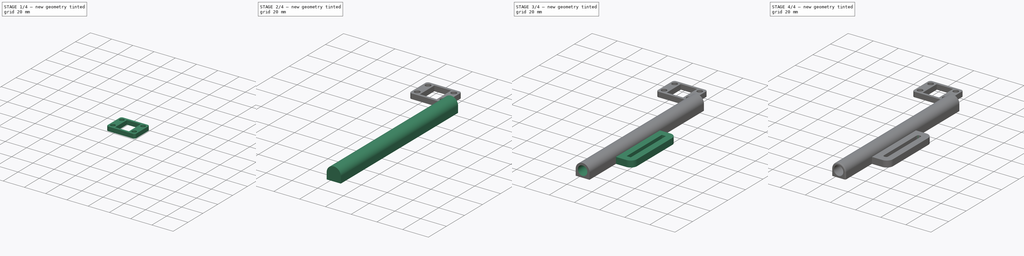
[diagram: build sequence overview — one tinted view per stage of 4, left to right]
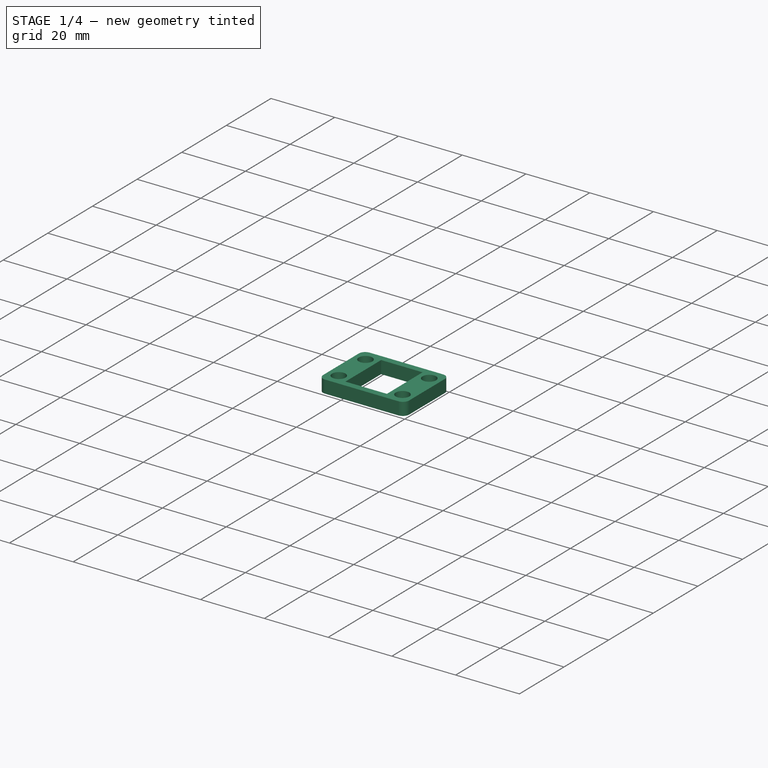
[diagram: stage 1 of 4 — iso view after this stage's code; geometry added in this stage tinted green]
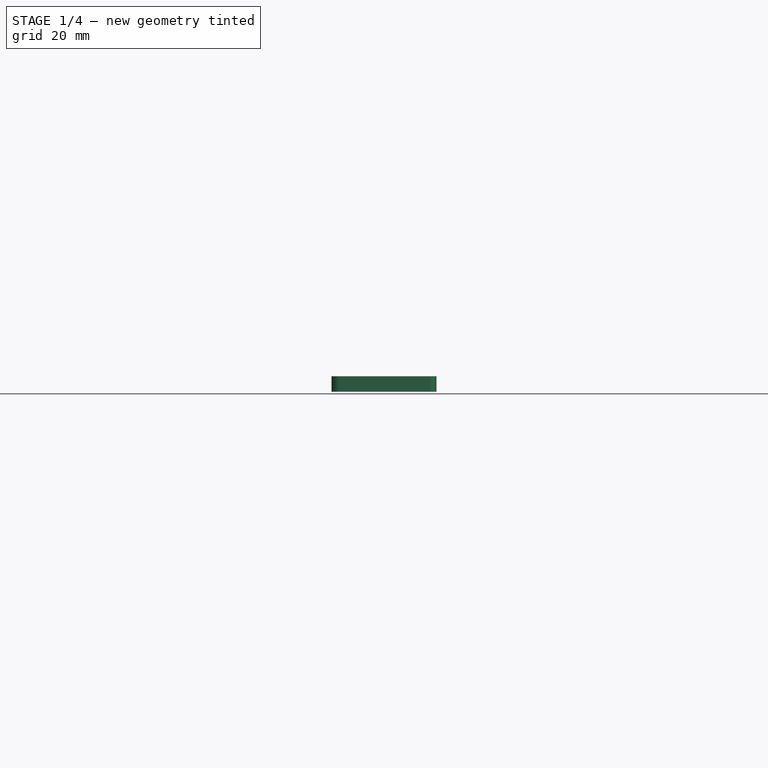
[diagram: stage 1 of 4 — front view after this stage's code; geometry added in this stage tinted green]
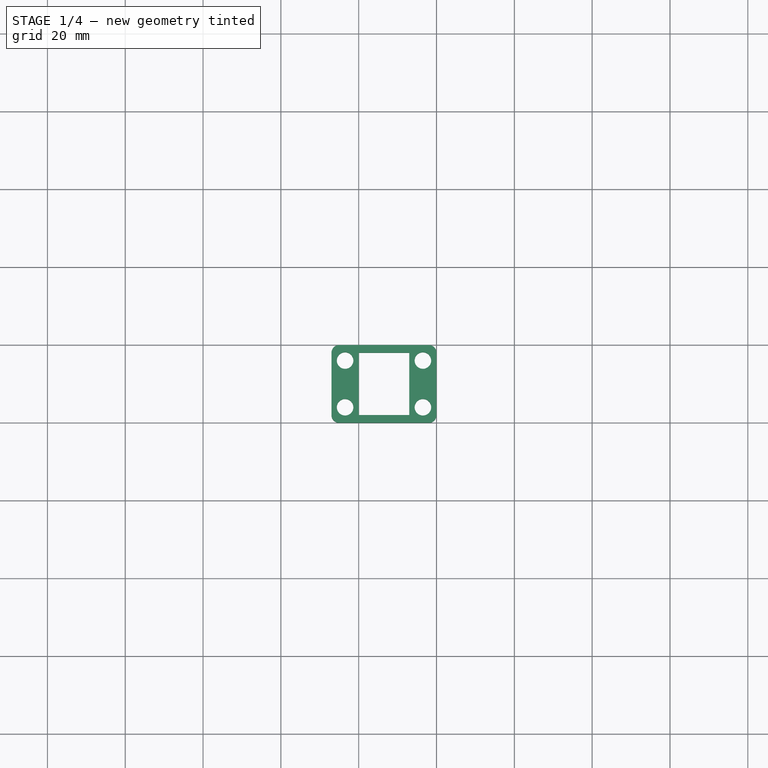
[diagram: stage 1 of 4 — top view after this stage's code; geometry added in this stage tinted green]
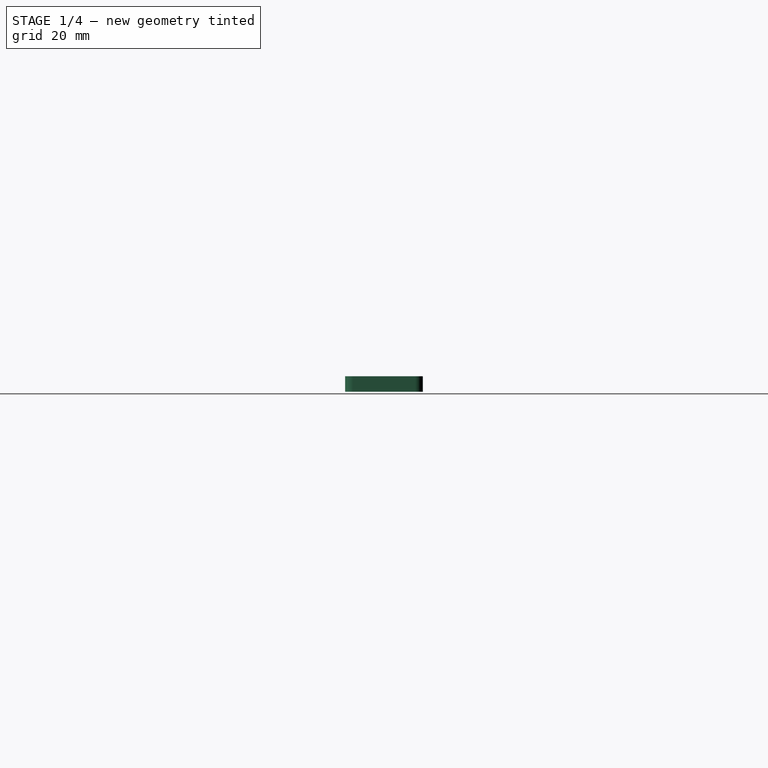
[diagram: stage 1 of 4 — right view after this stage's code; geometry added in this stage tinted green]
FCSTD DOCUMENT  (FreeCAD 2024.2R37226 (Git))
Label: pen-holder
License: All rights reserved
LicenseURL: https://en.wikipedia.org/wiki/All_rights_reserved
objects: Sketcher::SketchObject×6, PartDesign::Fillet×4, PartDesign::Pad×3, PartDesign::Pocket×3, PartDesign::Body×2
note: 28 computed .brp shape members not serialized (recipe doc carries the construction recipe); baked Part::Feature solids carry a one-line shape summary decoded from their .brp

FEATURE [PartDesign::Body] Body  label="PenHolder"
  Group = -> [Sketch,Pad,Sketch001,Pocket,Sketch002,Pocket001,Sketch003,Pocket002,Sketch004,Pad001,Fillet,Fillet001,Fillet002]
  Origin = -> Origin
  Tip = -> Fillet002
FEATURE [Sketcher::SketchObject] Sketch005
  AttachmentSupport = -> [XY_Plane001]
  FullyConstrained = true
  MapMode = 5
  sketch-geometry (14):
    g0: LineSegment StartX=0 StartY=0 StartZ=0 EndX=0 EndY=20 EndZ=0
    g1: LineSegment StartX=0 StartY=20 StartZ=0 EndX=-27 EndY=20 EndZ=0
    g2: LineSegment StartX=-27 StartY=20 StartZ=0 EndX=-27 EndY=0 EndZ=0
    g3: LineSegment StartX=-27 StartY=0 StartZ=0 EndX=0 EndY=0 EndZ=0
    g4: LineSegment StartX=-20 StartY=18 StartZ=0 EndX=-20 EndY=2 EndZ=0
    g5: LineSegment StartX=-20 StartY=2 StartZ=0 EndX=-7 EndY=2 EndZ=0
    g6: LineSegment StartX=-7 StartY=2 StartZ=0 EndX=-7 EndY=18 EndZ=0
    g7: LineSegment StartX=-7 StartY=18 StartZ=0 EndX=-20 EndY=18 EndZ=0
    g8: LineSegment StartX=-23.5 StartY=20 StartZ=0 EndX=-23.5 EndY=0 EndZ=0
    g9: LineSegment StartX=-3.5 StartY=20 StartZ=0 EndX=-3.5 EndY=0 EndZ=0
    g10: Circle CenterX=-23.5 CenterY=16 CenterZ=0 NormalX=0 NormalY=0 NormalZ=1 AngleXU=0 Radius=2.125
    g11: Circle CenterX=-23.5 CenterY=4 CenterZ=0 NormalX=0 NormalY=0 NormalZ=1 AngleXU=0 Radius=2.125
    g12: Circle CenterX=-3.5 CenterY=4 CenterZ=0 NormalX=0 NormalY=0 NormalZ=1 AngleXU=0 Radius=2.125
    g13: Circle CenterX=-3.5 CenterY=16 CenterZ=0 NormalX=0 NormalY=0 NormalZ=1 AngleXU=0 Radius=2.125
  constraints (43):
    c: Coincident(g0,g1)
    c: Coincident(g1,g2)
    c: Coincident(g2,g3)
    c: Coincident(g3,g0)
    c: Vertical(g0)
    c: Vertical(g2)
    c: Horizontal(g1)
    c: Horizontal(g3)
    c: Coincident(g0,g-1)
    c: Coincident(g4,g5)
    c: Coincident(g5,g6)
    c: Coincident(g6,g7)
    c: Coincident(g7,g4)
    c: Vertical(g4)
    c: Vertical(g6)
    c: Horizontal(g5)
    c: Horizontal(g7)
    c: PointOnObject(g8,g1)
    c: PointOnObject(g8,g3)
    c: Vertical(g8)
    c: PointOnObject(g9,g1)
    c: PointOnObject(g9,g3)
    c: Vertical(g9)
    c: Distance(g8,g9) = 20
    c: Distance(g2,g4) = 7
    c: Distance(g0,g6) = 7
    c: Distance(g1,g7) = 2
    c: Distance(g3,g5) = 2
    c: Distance(g0,g9) = 3.5
    c: Distance(g2,g8) = 3.5
    c: PointOnObject(g10,g8)
    c: PointOnObject(g11,g8)
    c: PointOnObject(g13,g9)
    c: Equal(g13,g11)
    c: Equal(g11,g12)
    c: Equal(g12,g10)
    c: Diameter(g10) = 4.25
    c: DistanceY(g11,g10) = 12
    c: DistanceY(g12,g13) = 12
    c: Distance(g11,g3) = 4
    c: Distance(g12,g3) = 4
    c: Distance(g13,g1) = 4
    c: PointOnObject(g12,g9)
FEATURE [PartDesign::Pad] Pad002
  Direction = (0,0,1)
  Length = 4
  Length2 = 10
  Profile = -> Sketch005
  ReferenceAxis = -> Sketch005 [N_Axis]
  Refine = true
  Suppressed = false
  Type = 0
FEATURE [PartDesign::Fillet] Fillet003
  Base = -> Pad002 [Edge5,Edge8,Edge1,Edge2]
  BaseFeature = -> Pad002
  Radius = 2
  Refine = true
  SupportTransform = false
  Suppressed = false
  UseAllEdges = false
FEATURE [PartDesign::Body] Body001  label="NutsHolder"
  Group = -> [Sketch005,Pad002,Fillet003]
  Origin = -> Origin001
  Tip = -> Fillet003
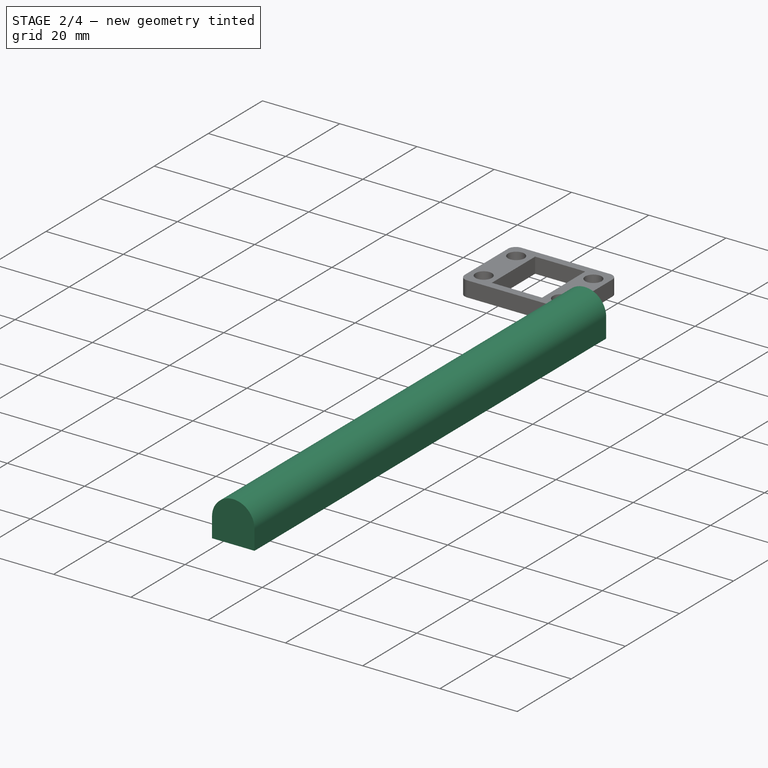
[diagram: stage 2 of 4 — iso view after this stage's code; geometry added in this stage tinted green]
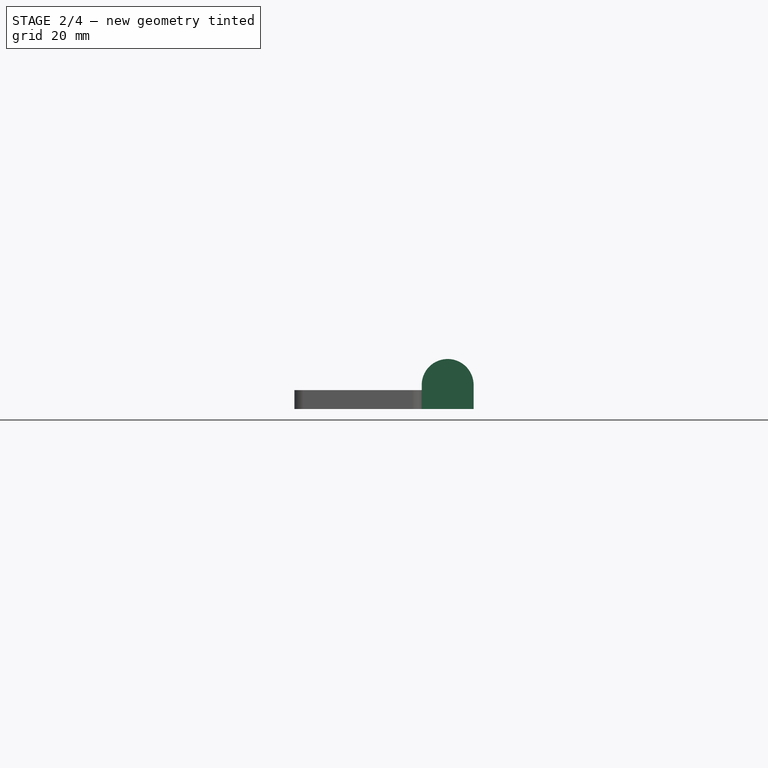
[diagram: stage 2 of 4 — front view after this stage's code; geometry added in this stage tinted green]
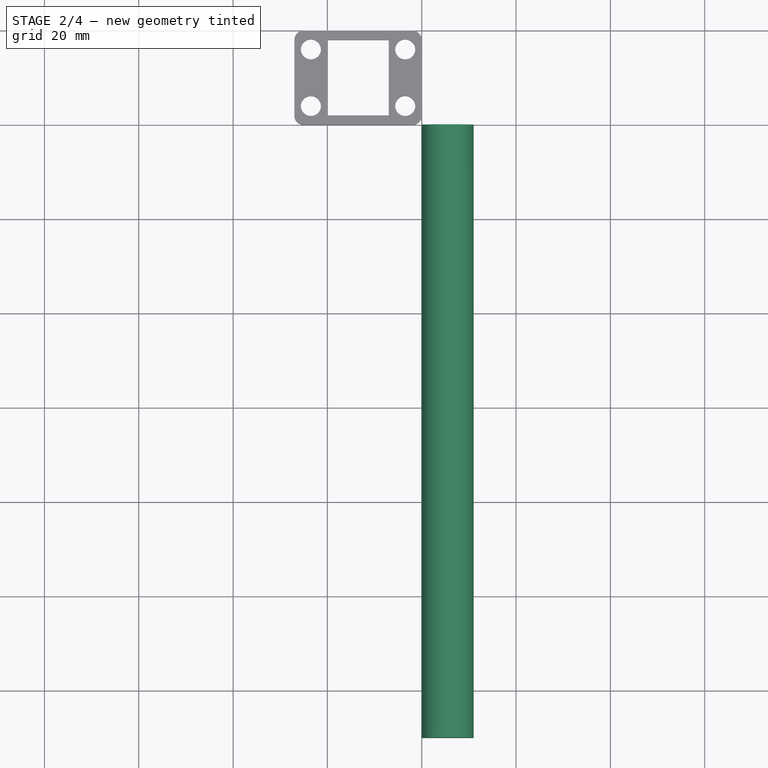
[diagram: stage 2 of 4 — top view after this stage's code; geometry added in this stage tinted green]
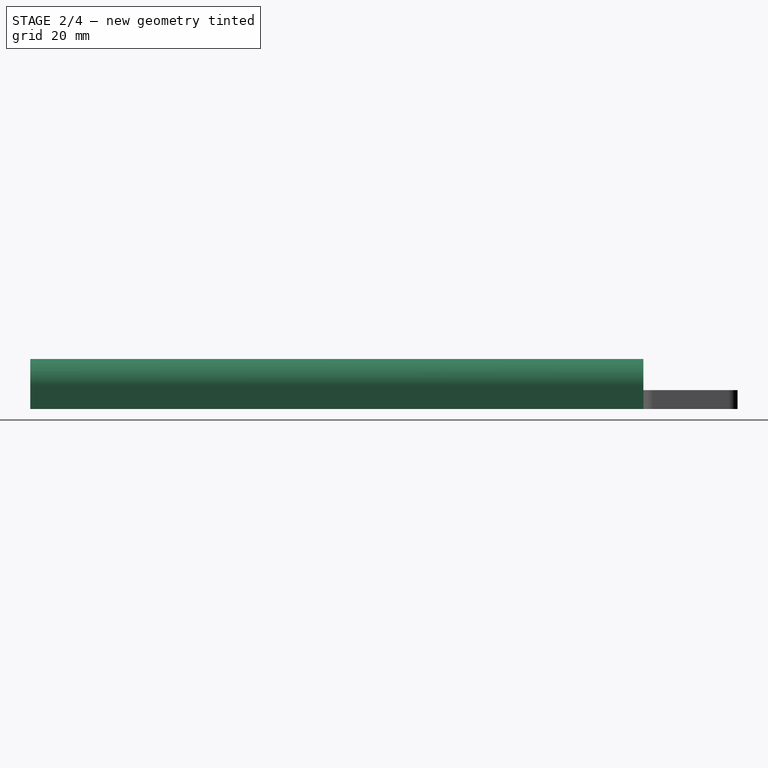
[diagram: stage 2 of 4 — right view after this stage's code; geometry added in this stage tinted green]
FEATURE [Sketcher::SketchObject] Sketch
  AttachmentSupport = -> [XZ_Plane]
  FullyConstrained = true
  MapMode = 5
  Placement = pos=(0,0,0) rot=(1,0,0;1.5708rad)
  sketch-geometry (5):
    g0: Circle CenterX=5.5 CenterY=5.1 CenterZ=0 NormalX=0 NormalY=0 NormalZ=1 AngleXU=0 Radius=3.5
    g1: ArcOfCircle CenterX=5.5 CenterY=5.1 CenterZ=0 NormalX=0 NormalY=0 NormalZ=1 AngleXU=0 Radius=5.5 StartAngle=-6.99e-13 EndAngle=3.14159
    g2: LineSegment StartX=1.05924e-11 StartY=0 StartZ=0 EndX=1.05924e-11 EndY=5.1 EndZ=0
    g3: LineSegment StartX=1.05924e-11 StartY=0 StartZ=0 EndX=11 EndY=0 EndZ=0
    g4: LineSegment StartX=11 StartY=5.1 StartZ=0 EndX=11 EndY=0 EndZ=0
  constraints (12):
    c: Diameter(g0) = 7
    c: Coincident(g1,g0)
    c: Distance(g0,g1) = 2
    c: Coincident(g2,g-1)
    c: Vertical(g2)
    c: Coincident(g3,g2)
    c: PointOnObject(g3,g-1)
    c: Coincident(g4,g3)
    c: Vertical(g4)
    c: Tangent(g1,g2) = 1.5708
    c: Tangent(g1,g4) = 1.5708
    c: Distance(g0,g3) = 1.6
FEATURE [PartDesign::Pad] Pad
  Direction = (0,-1,2e-16)
  Length = 130
  Length2 = 10
  Placement = pos=(0,0,0) rot=(1,0,0;1.5708rad)
  Profile = -> Sketch
  ReferenceAxis = -> Sketch [N_Axis]
  Refine = true
  Suppressed = false
  Type = 0
FEATURE [Sketcher::SketchObject] Sketch001
  AttachmentSupport = -> [Pad]
  ExternalGeometry = -> [Pad]
  FullyConstrained = true
  MapMode = 5
  Placement = pos=(0,1e-15,0) rot=(-1,0,0;1.5708rad)
  sketch-geometry (1):
    g0: Circle CenterX=5.5 CenterY=-5.1 CenterZ=0 NormalX=0 NormalY=0 NormalZ=1 AngleXU=0 Radius=2.25
  constraints (2):
    c: Diameter(g0) = 4.5
    c: Coincident(g0,g-4)
FEATURE [PartDesign::Pocket] Pocket
  BaseFeature = -> Pad
  Direction = (0,-1,-2e-16)
  Length = 5
  Length2 = 5
  Placement = pos=(0,0,0) rot=(1,0,0;1.5708rad)
  Profile = -> Sketch001
  ReferenceAxis = -> Sketch001 [N_Axis]
  Refine = true
  Suppressed = false
  Type = 0
FEATURE [Sketcher::SketchObject] Sketch002
  AttachmentSupport = -> [Pocket]
  ExternalGeometry = -> [Pocket]
  FullyConstrained = true
  MapMode = 5
  Placement = pos=(0,-5,6e-16) rot=(-1,0,0;1.5708rad)
  sketch-geometry (1):
    g0: Circle CenterX=5.5 CenterY=-5.1 CenterZ=0 NormalX=0 NormalY=0 NormalZ=1 AngleXU=0 Radius=3.5
  constraints (2):
    c: Coincident(g0,g-3)
    c: Diameter(g0) = 7
FEATURE [PartDesign::Pocket] Pocket001
  BaseFeature = -> Pocket
  Direction = (0,-1,-2e-16)
  Length = 114
  Length2 = 5
  Placement = pos=(0,0,0) rot=(1,0,0;1.5708rad)
  Profile = -> Sketch002
  ReferenceAxis = -> Sketch002 [N_Axis]
  Refine = true
  Suppressed = false
  Type = 0
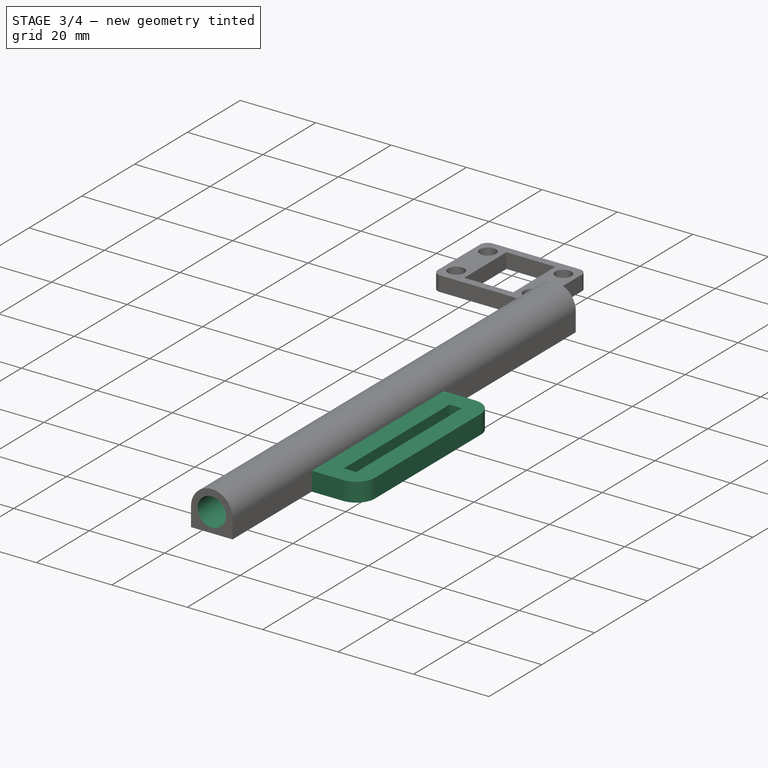
[diagram: stage 3 of 4 — iso view after this stage's code; geometry added in this stage tinted green]
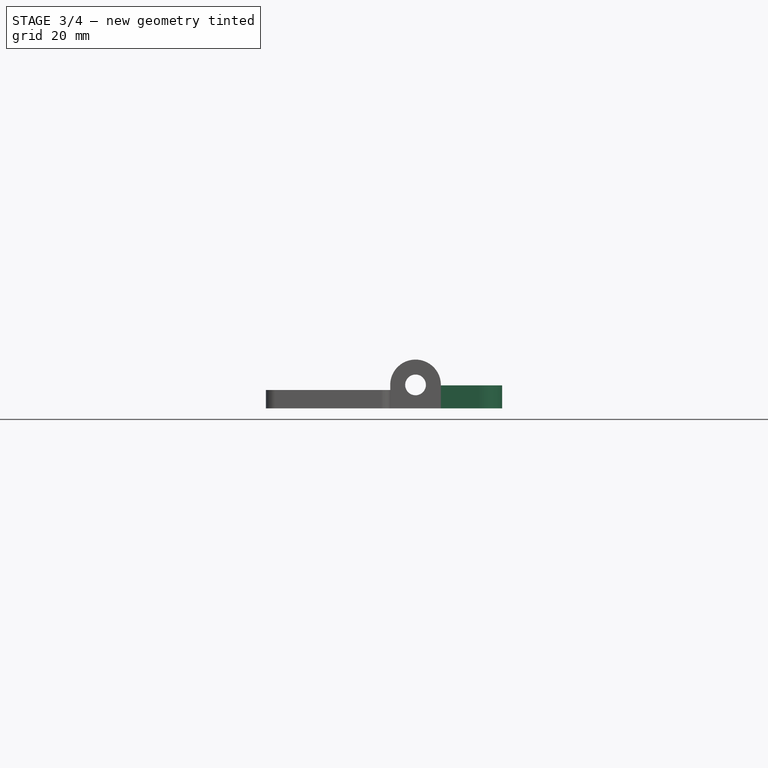
[diagram: stage 3 of 4 — front view after this stage's code; geometry added in this stage tinted green]
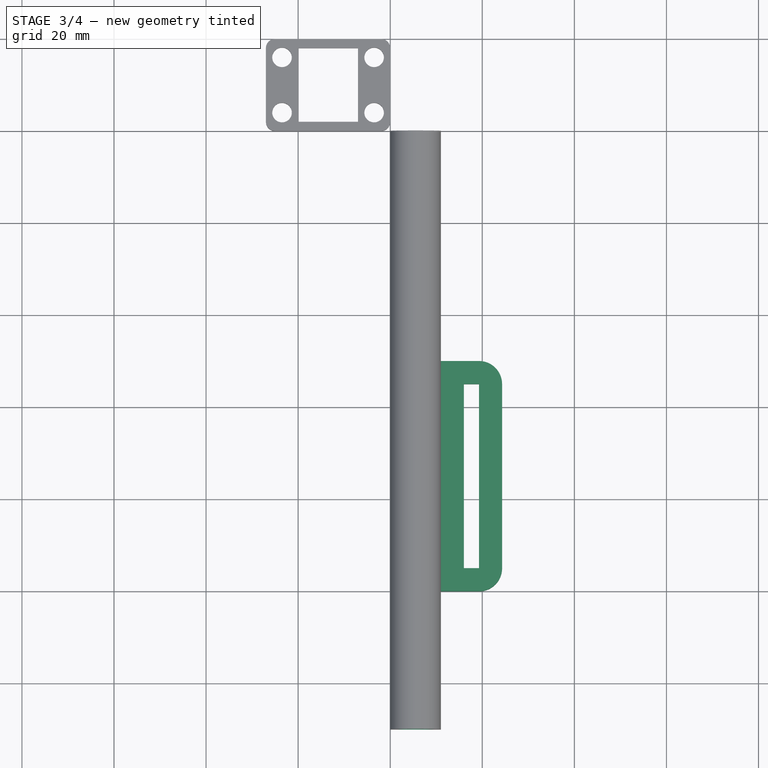
[diagram: stage 3 of 4 — top view after this stage's code; geometry added in this stage tinted green]
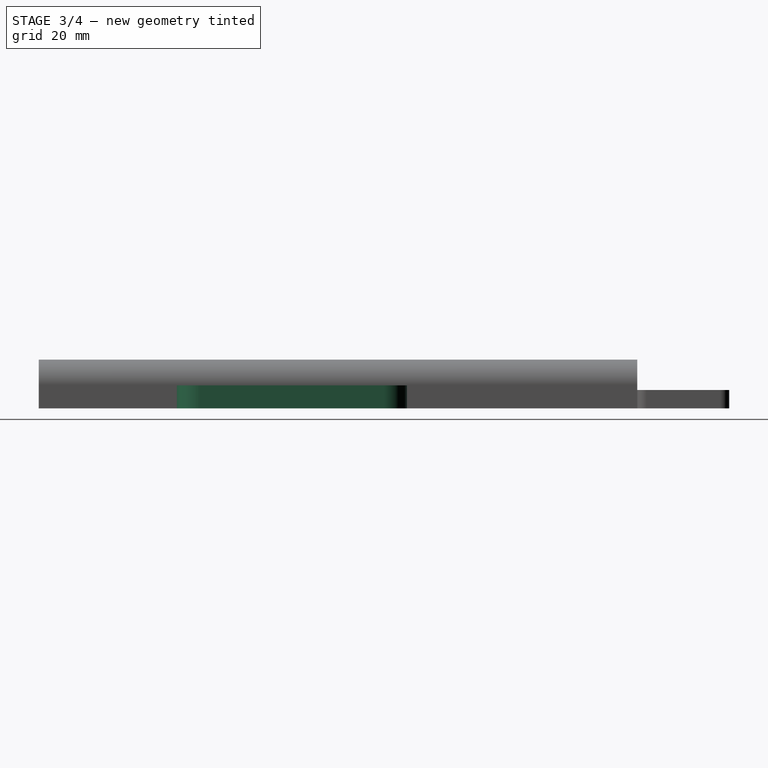
[diagram: stage 3 of 4 — right view after this stage's code; geometry added in this stage tinted green]
FEATURE [Sketcher::SketchObject] Sketch003
  AttachmentSupport = -> [Pocket001]
  ExternalGeometry = -> [Pocket001]
  FullyConstrained = true
  MapMode = 5
  Placement = pos=(0,-130,2.89e-14) rot=(1,0,0;1.5708rad)
  sketch-geometry (1):
    g0: Circle CenterX=5.5 CenterY=5.1 CenterZ=0 NormalX=0 NormalY=0 NormalZ=1 AngleXU=0 Radius=3.75
  constraints (2):
    c: Coincident(g0,g-3)
    c: Diameter(g0) = 7.5
FEATURE [PartDesign::Pocket] Pocket002
  BaseFeature = -> Pocket001
  Direction = (0,1,-2e-16)
  Length = 11
  Length2 = 5
  Placement = pos=(0,0,0) rot=(1,0,0;1.5708rad)
  Profile = -> Sketch003
  ReferenceAxis = -> Sketch003 [N_Axis]
  Refine = true
  Suppressed = false
  Type = 0
FEATURE [Sketcher::SketchObject] Sketch004
  AttachmentSupport = -> [XY_Plane]
  ExternalGeometry = -> [Pocket002]
  FullyConstrained = true
  MapMode = 5
  sketch-geometry (9):
    g0: LineSegment StartX=11 StartY=-50 StartZ=0 EndX=24.3 EndY=-50 EndZ=0
    g1: LineSegment StartX=24.3 StartY=-50 StartZ=0 EndX=24.3 EndY=-100 EndZ=0
    g2: LineSegment StartX=24.3 StartY=-100 StartZ=0 EndX=11 EndY=-100 EndZ=0
    g3: LineSegment StartX=16 StartY=-55 StartZ=0 EndX=16 EndY=-95 EndZ=0
    g4: LineSegment StartX=16 StartY=-95 StartZ=0 EndX=19.3 EndY=-95 EndZ=0
    g5: LineSegment StartX=19.3 StartY=-95 StartZ=0 EndX=19.3 EndY=-55 EndZ=0
    g6: LineSegment StartX=19.3 StartY=-55 StartZ=0 EndX=16 EndY=-55 EndZ=0
    g7: LineSegment StartX=19.3 StartY=-75 StartZ=0 EndX=24.3 EndY=-75 EndZ=0
    g8: LineSegment StartX=11 StartY=-50 StartZ=0 EndX=11 EndY=-100 EndZ=0
  constraints (26):
    c: PointOnObject(g0,g-3)
    c: Horizontal(g0)
    c: Coincident(g1,g0)
    c: Vertical(g1)
    c: Coincident(g2,g1)
    c: PointOnObject(g2,g-3)
    c: Horizontal(g2)
    c: Distance(g-3,g0) = 50
    c: DistanceY(g1,g1) = 50
    c: Coincident(g3,g4)
    c: Coincident(g4,g5)
    c: Coincident(g5,g6)
    c: Coincident(g6,g3)
    c: Vertical(g3)
    c: Vertical(g5)
    c: Horizontal(g4)
    c: Horizontal(g6)
    c: Distance(g3,g5) = 3.3
    c: Distance(g4,g6) = 40
    c: Symmetric(g5,g5,g7)
    c: Symmetric(g1,g1,g7)
    c: Horizontal(g7)
    c: Distance(g1,g5) = 5
    c: Distance(g-3,g3) = 5
    c: Coincident(g8,g0)
    c: Coincident(g8,g2)
FEATURE [PartDesign::Pad] Pad001
  BaseFeature = -> Pocket002
  Direction = (0,0,1)
  Length = 5
  Length2 = 10
  Placement = pos=(0,0,0) rot=(1,0,0;1.5708rad)
  Profile = -> Sketch004
  ReferenceAxis = -> Sketch004 [N_Axis]
  Refine = true
  Suppressed = false
  Type = 0
FEATURE [PartDesign::Fillet] Fillet
  Base = -> Pad001 [Edge19,Edge28]
  BaseFeature = -> Pad001
  Placement = pos=(0,0,0) rot=(1,0,0;1.5708rad)
  Radius = 5
  Refine = true
  SupportTransform = false
  Suppressed = false
  UseAllEdges = false
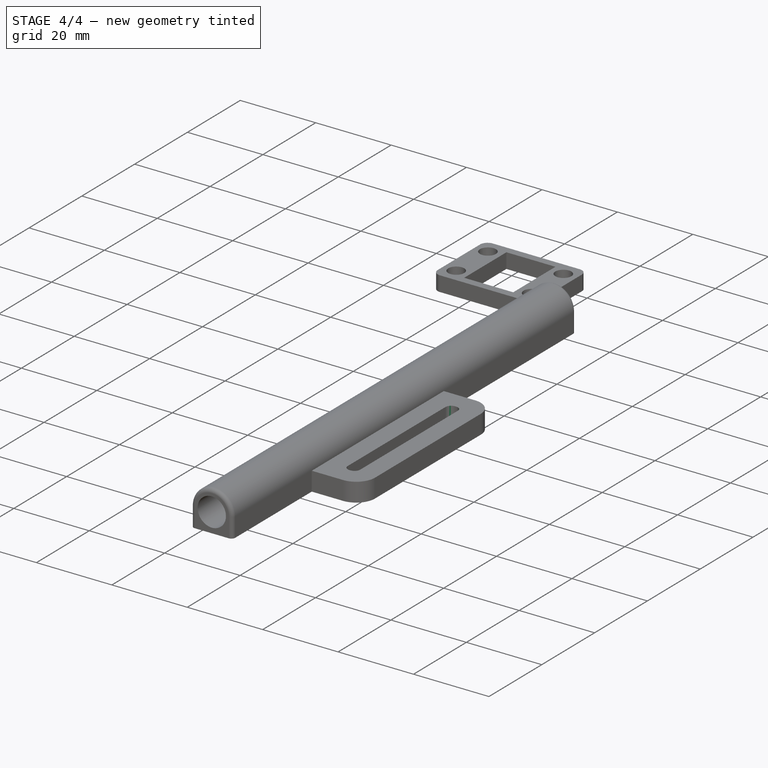
[diagram: stage 4 of 4 — iso view after this stage's code; geometry added in this stage tinted green]
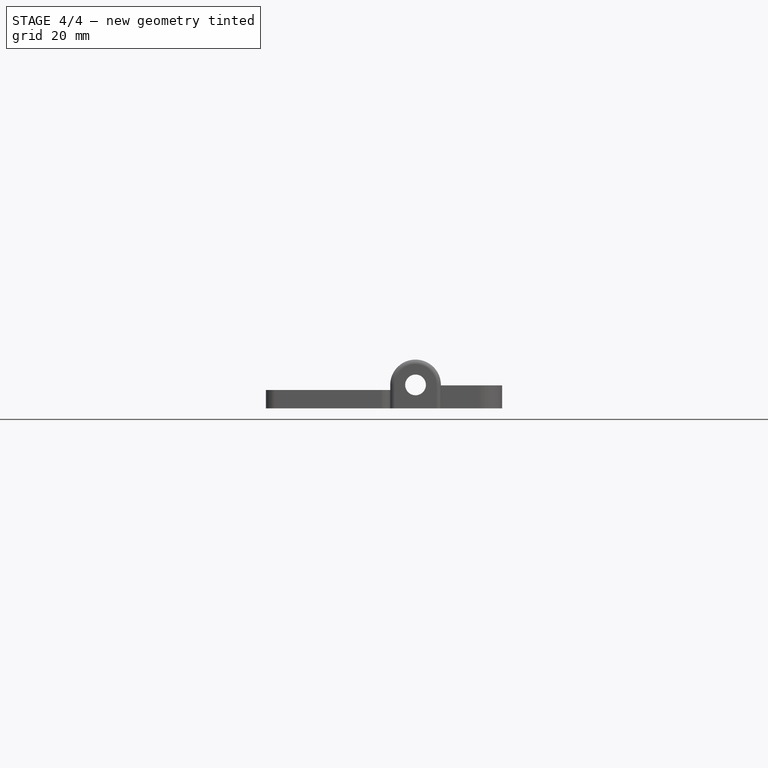
[diagram: stage 4 of 4 — front view after this stage's code; geometry added in this stage tinted green]
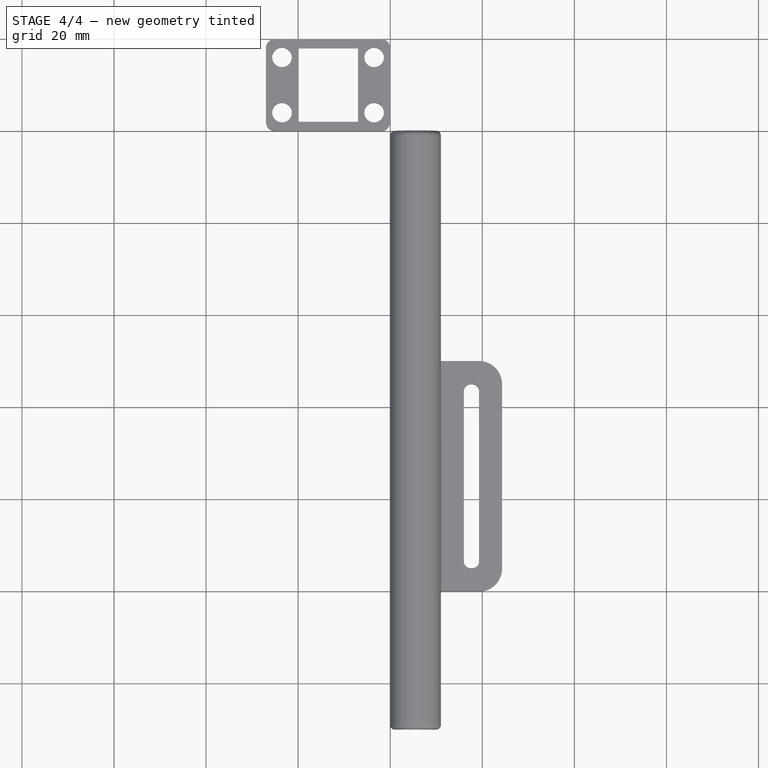
[diagram: stage 4 of 4 — top view after this stage's code; geometry added in this stage tinted green]
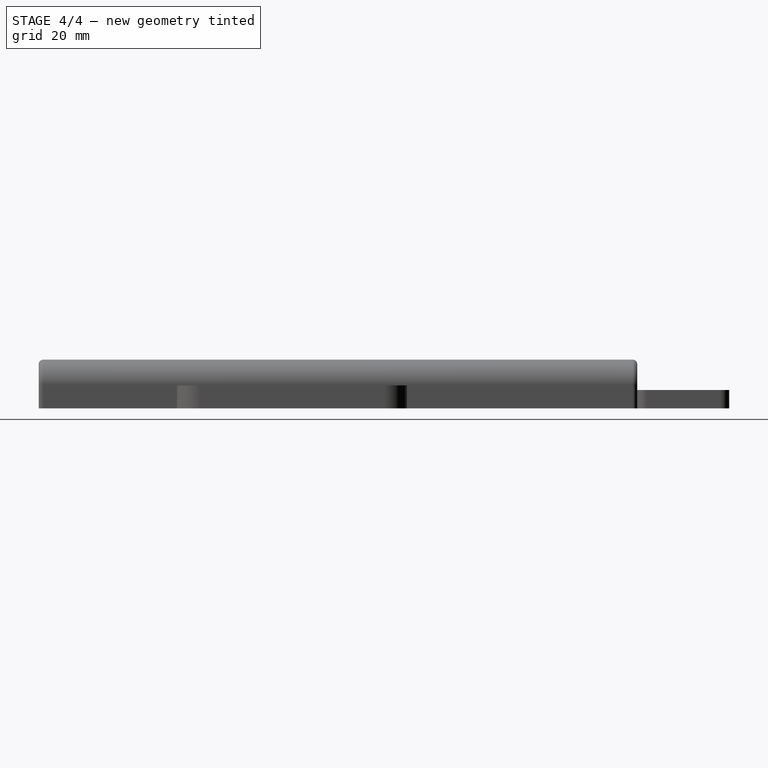
[diagram: stage 4 of 4 — right view after this stage's code; geometry added in this stage tinted green]
FEATURE [PartDesign::Fillet] Fillet001
  Base = -> Fillet [Edge42,Edge43,Edge44,Edge41]
  BaseFeature = -> Fillet
  Placement = pos=(0,0,0) rot=(1,0,0;1.5708rad)
  Radius = 1.5
  Refine = true
  SupportTransform = false
  Suppressed = false
  UseAllEdges = false
FEATURE [PartDesign::Fillet] Fillet002
  Base = -> Fillet001 [Edge55,Edge43,Edge40,Edge47,Edge48,Edge53]
  BaseFeature = -> Fillet001
  Placement = pos=(0,0,0) rot=(1,0,0;1.5708rad)
  Radius = 1
  Refine = true
  SupportTransform = false
  Suppressed = false
  UseAllEdges = false
  expr: Radius = 1
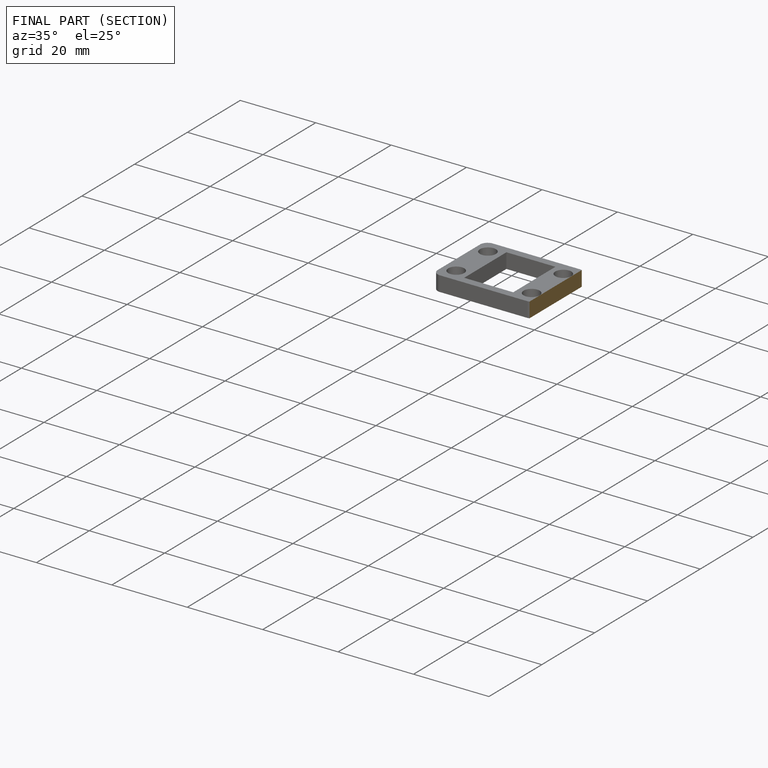
[diagram: finished part — half-section view (interior)]
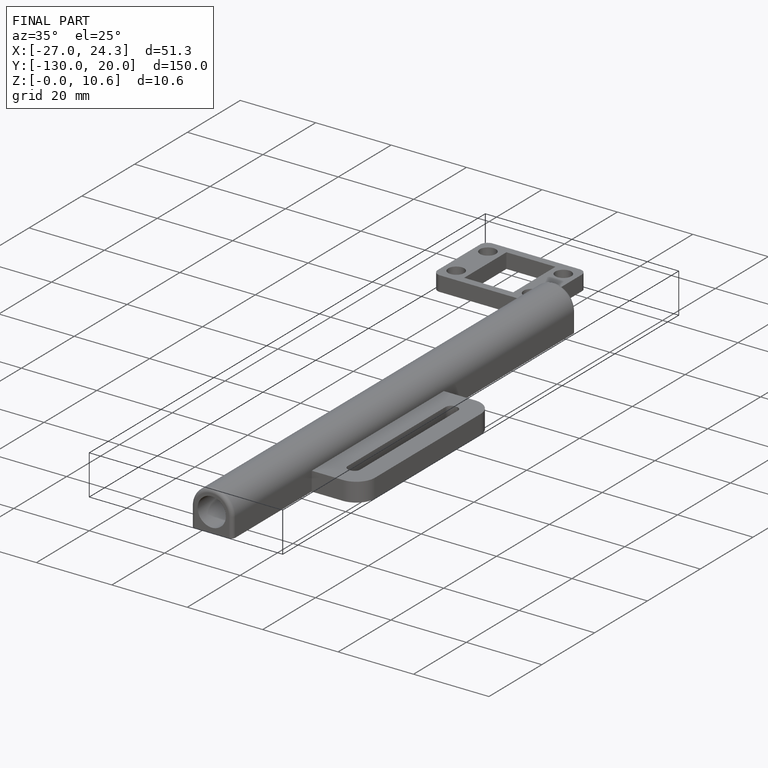
[diagram: finished part — iso view with bounding-box wireframe]
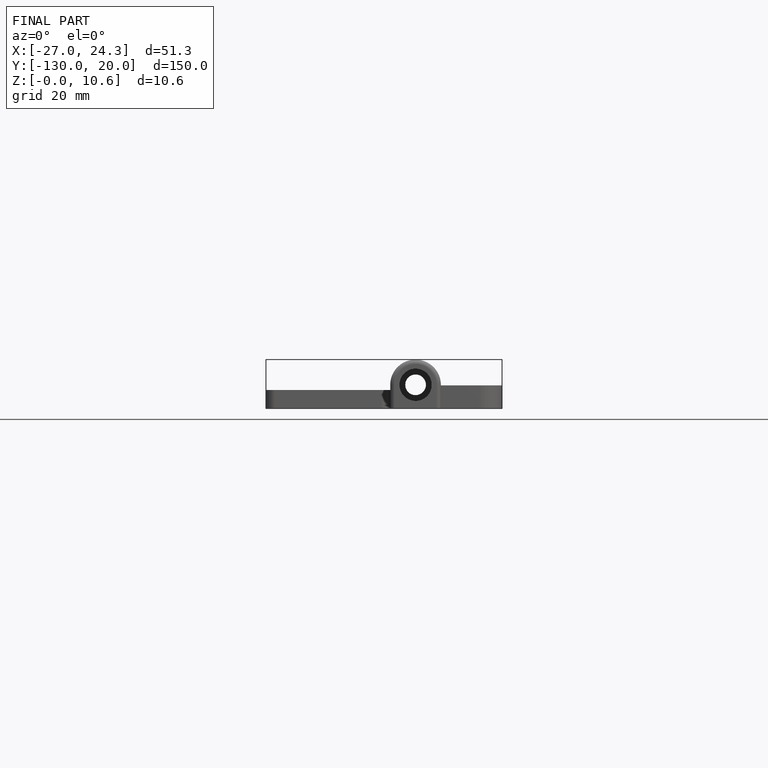
[diagram: finished part — front view with bounding-box wireframe]
